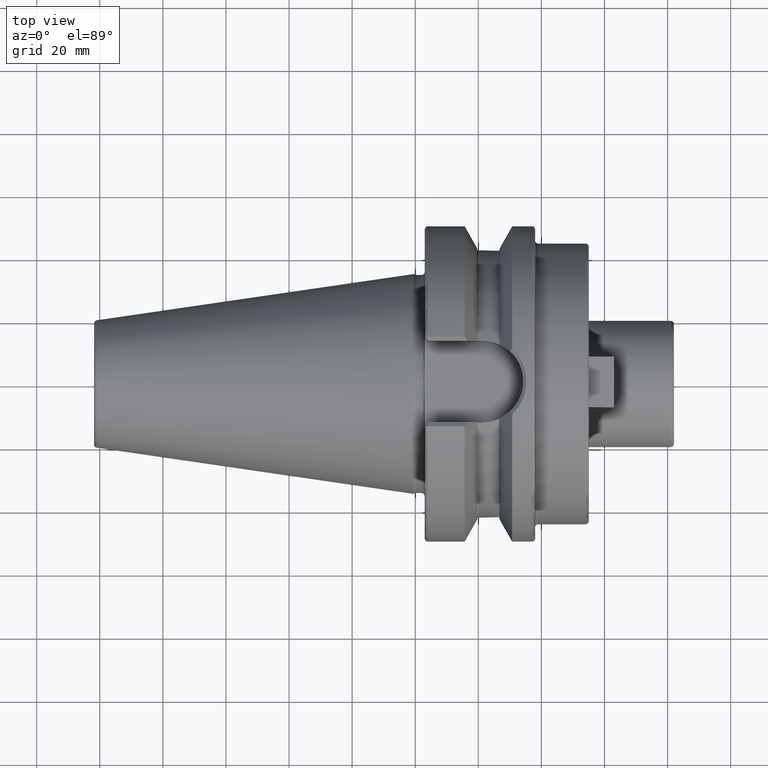
[diagram: clean part render]
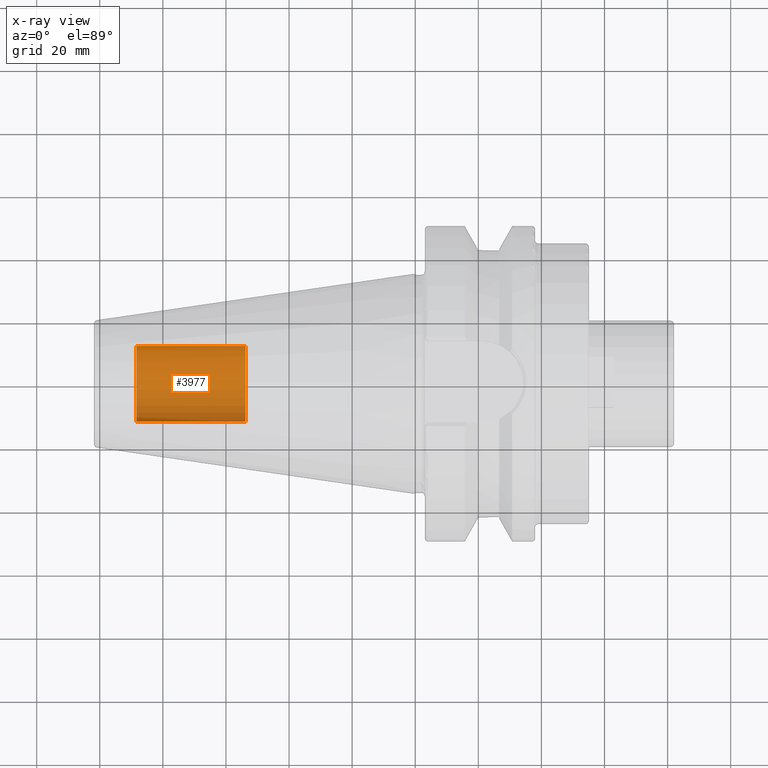
[diagram: x-ray — body ghosted, one internal face saturated and labeled with its STEP entity id]
A machine part, top view, then the same camera in x-ray: the body is ghosted and one INTERNAL B-rep face — a face not visible from any outside direction — is saturated and labeled: STEP entity #3977.
In plain terms, the highlighted cylindrical surface (partial cylindrical patch) has radius 12.0032 mm, axis along (1, 0, 0).
Its self-contained STEP definition (entity closure, byte-faithful):
#3912=CARTESIAN_POINT('',(-8.835E1,0.E0,0.E0));
#3913=DIRECTION('',(-1.E0,0.E0,0.E0));
#3914=DIRECTION('',(0.E0,1.E0,0.E0));
#3915=AXIS2_PLACEMENT_3D('',#3912,#3913,#3914);
#3917=DIRECTION('',(1.E0,0.E0,0.E0));
#3918=VECTOR('',#3917,3.455E1);
#3919=CARTESIAN_POINT('',(-8.835E1,-1.200325E1,0.E0));
#3920=LINE('',#3919,#3918);
#3926=DIRECTION('',(1.E0,0.E0,0.E0));
#3927=VECTOR('',#3926,3.455E1);
#3928=CARTESIAN_POINT('',(-8.835E1,1.200325E1,0.E0));
#3929=LINE('',#3928,#3927);
#3935=CARTESIAN_POINT('',(-5.38E1,0.E0,0.E0));
#3936=DIRECTION('',(1.E0,0.E0,0.E0));
#3937=DIRECTION('',(0.E0,-1.E0,0.E0));
#3938=AXIS2_PLACEMENT_3D('',#3935,#3936,#3937);
#3950=CARTESIAN_POINT('',(-8.835E1,1.200325E1,0.E0));
#3951=CARTESIAN_POINT('',(-8.835E1,-1.200325E1,0.E0));
#3952=VERTEX_POINT('',#3950);
#3953=VERTEX_POINT('',#3951);
#3954=CARTESIAN_POINT('',(-5.38E1,1.200325E1,0.E0));
#3955=CARTESIAN_POINT('',(-5.38E1,-1.200325E1,0.E0));
#3956=VERTEX_POINT('',#3954);
#3957=VERTEX_POINT('',#3955);
#3962=CARTESIAN_POINT('',(-8.835E1,0.E0,0.E0));
#3963=DIRECTION('',(1.E0,0.E0,0.E0));
#3964=DIRECTION('',(0.E0,1.E0,0.E0));
#3965=AXIS2_PLACEMENT_3D('',#3962,#3963,#3964);
#3966=CYLINDRICAL_SURFACE('',#3965,1.200325E1);
#3968=ORIENTED_EDGE('',*,*,#3967,.T.);
#3970=ORIENTED_EDGE('',*,*,#3969,.T.);
#3972=ORIENTED_EDGE('',*,*,#3971,.T.);
#3974=ORIENTED_EDGE('',*,*,#3973,.F.);
#3975=EDGE_LOOP('',(#3968,#3970,#3972,#3974));
#3976=FACE_OUTER_BOUND('',#3975,.F.);
#3977=ADVANCED_FACE('',(#3976),#3966,.T.);
#3916=CIRCLE('',#3915,1.200325E1);
#3939=CIRCLE('',#3938,1.200325E1);
#3967=EDGE_CURVE('',#3952,#3953,#3916,.T.);
#3969=EDGE_CURVE('',#3953,#3957,#3920,.T.);
#3971=EDGE_CURVE('',#3957,#3956,#3939,.T.);
#3973=EDGE_CURVE('',#3952,#3956,#3929,.T.);